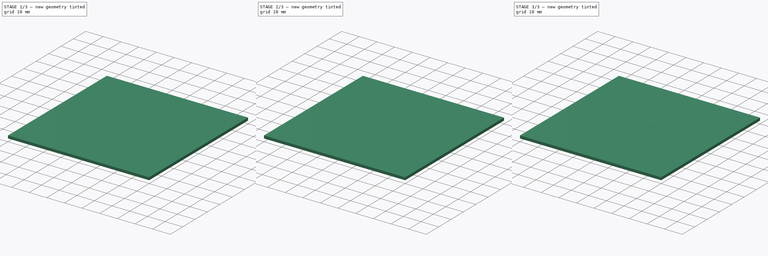
[diagram: build sequence overview — one tinted view per stage of 3, left to right]
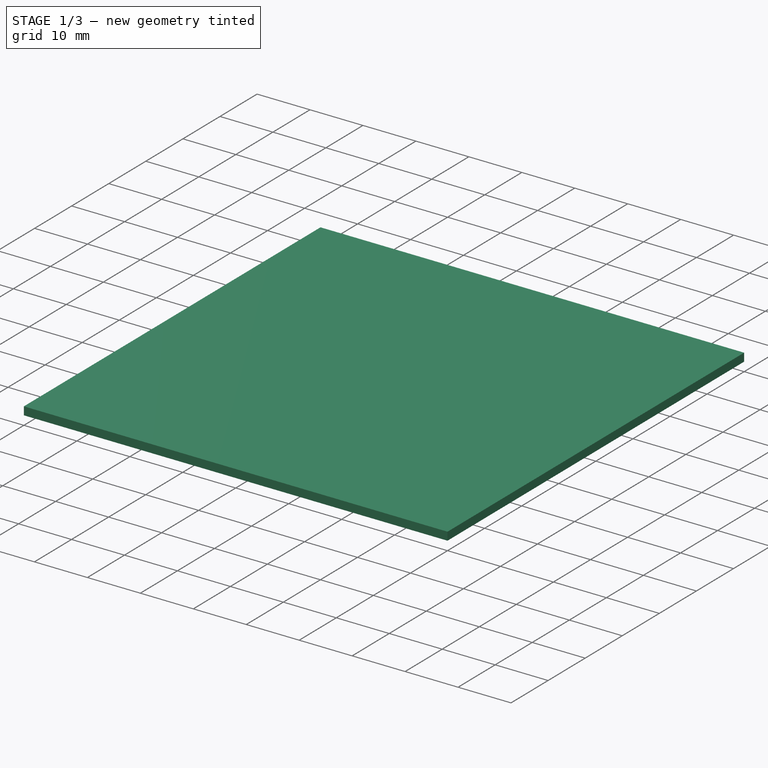
[diagram: stage 1 of 3 — iso view after this stage's code; geometry added in this stage tinted green]
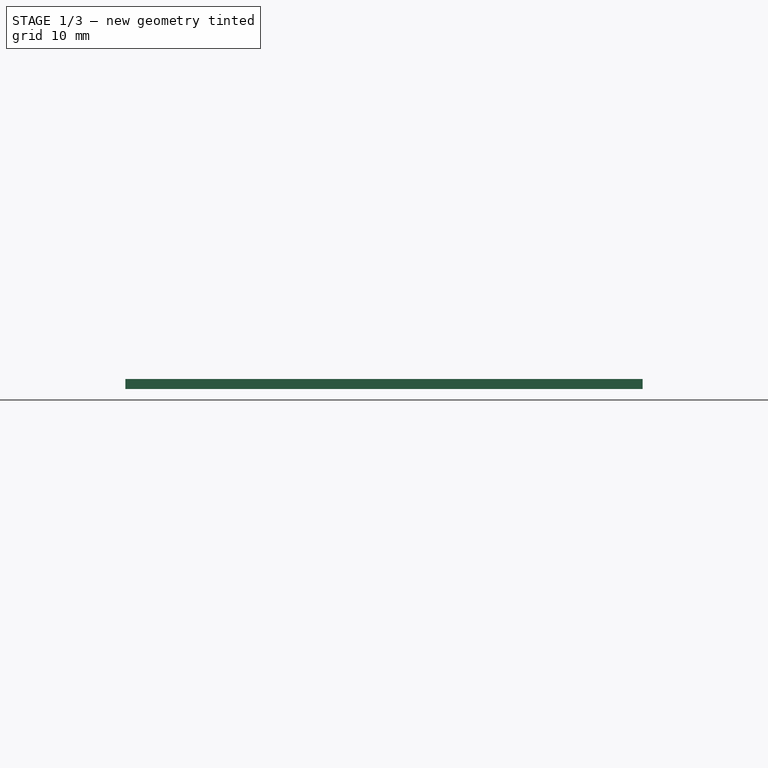
[diagram: stage 1 of 3 — front view after this stage's code; geometry added in this stage tinted green]
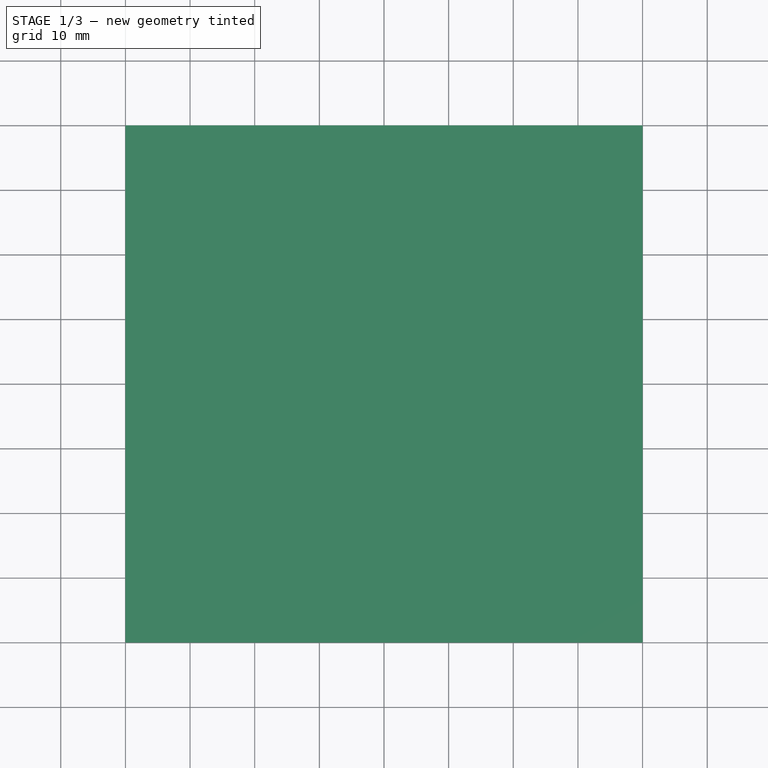
[diagram: stage 1 of 3 — top view after this stage's code; geometry added in this stage tinted green]
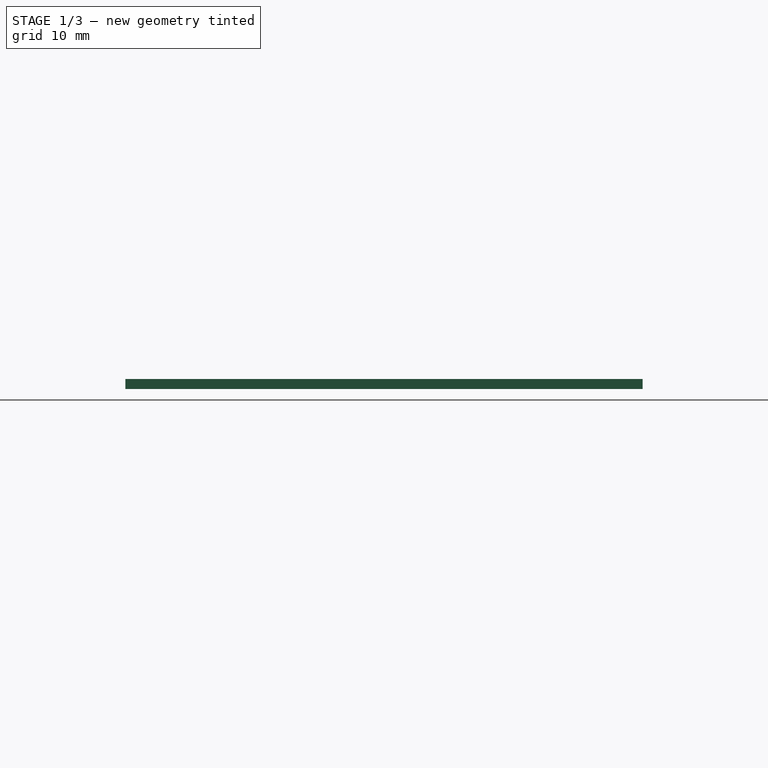
[diagram: stage 1 of 3 — right view after this stage's code; geometry added in this stage tinted green]
FCSTD DOCUMENT  (FreeCAD 0.17R13541 (Git))
Label: Circular Polarized Patch Antenna
License: All rights reserved
LicenseURL: http://en.wikipedia.org/wiki/All_rights_reserved
objects: Sketcher::SketchObject×5, Part::Extrusion×4, App::Part×1, Part::Cut×1
note: 10 computed .brp shape members not serialized (recipe doc carries the construction recipe); baked Part::Feature solids carry a one-line shape summary decoded from their .brp

FEATURE [Part::Extrusion] Extrude002  label="substrateSolid"
  Base = -> Sketch001
  Dir = (0,0,1)
  DirMode = 2
  FaceMakerClass = Part::FaceMakerBullseye
  LengthFwd = -1.5
  LengthRev = 0
  Solid = true
  Symmetric = false
FEATURE [Sketcher::SketchObject] Sketch004  label="substrate001"
  MapMode = 2
  Support = -> [Sketch]
  sketch-geometry (6):
    g0: LineSegment StartX=40 StartY=40 StartZ=0 EndX=-40 EndY=40 EndZ=0
    g1: LineSegment StartX=-40 StartY=40 StartZ=0 EndX=-40 EndY=-40 EndZ=0
    g2: LineSegment StartX=-40 StartY=-40 StartZ=0 EndX=40 EndY=-40 EndZ=0
    g3: LineSegment StartX=40 StartY=-40 StartZ=0 EndX=40 EndY=40 EndZ=0
    g4: GeomPoint X=0 Y=40 Z=0
    g5: GeomPoint X=40 Y=0 Z=0
  constraints (16):
    c: Coincident(g0,g1)
    c: Coincident(g1,g2)
    c: Coincident(g2,g3)
    c: Coincident(g3,g0)
    c: Horizontal(g0)
    c: Horizontal(g2)
    c: Vertical(g1)
    c: Vertical(g3)
    c: PointOnObject(g4,g0)
    c: Symmetric(g0,g0,g4)
    c: PointOnObject(g5,g3)
    c: Symmetric(g0,g2,g5)
    c: PointOnObject(g4,g-2)
    c: PointOnObject(g5,g-1)
    c: Distance(g3) = 80
    c: Distance(g0) = 80
FEATURE [Part::Extrusion] Extrude003  label="gndSolid"
  Base = -> Sketch004
  Dir = (0,0,1)
  DirMode = 2
  FaceMakerClass = Part::FaceMakerBullseye
  LengthFwd = -0.035
  LengthRev = 0
  Placement = pos=(0,0,-1.5) rot=(0,0,1;0rad)
  Solid = true
  Symmetric = false
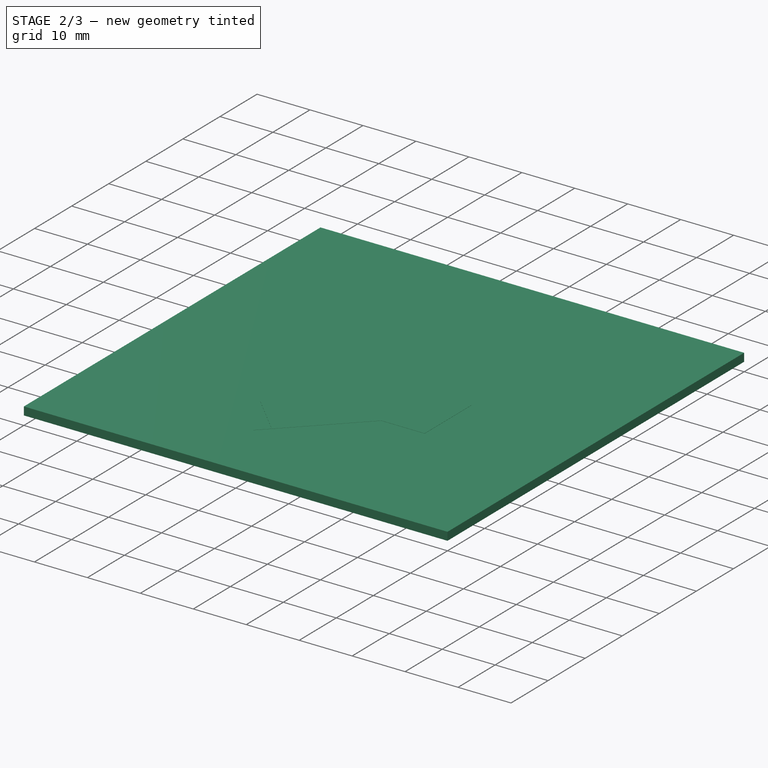
[diagram: stage 2 of 3 — iso view after this stage's code; geometry added in this stage tinted green]
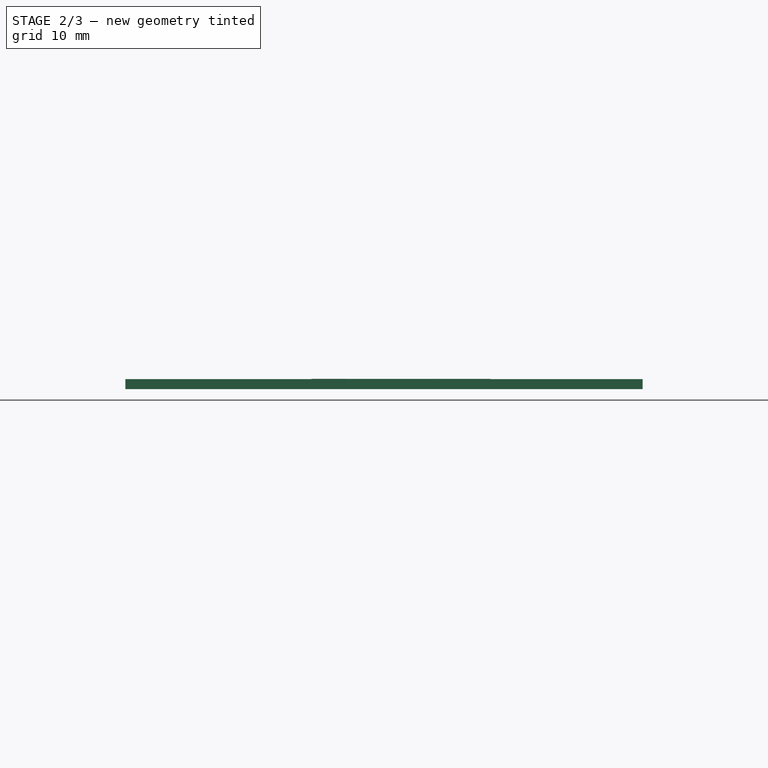
[diagram: stage 2 of 3 — front view after this stage's code; geometry added in this stage tinted green]
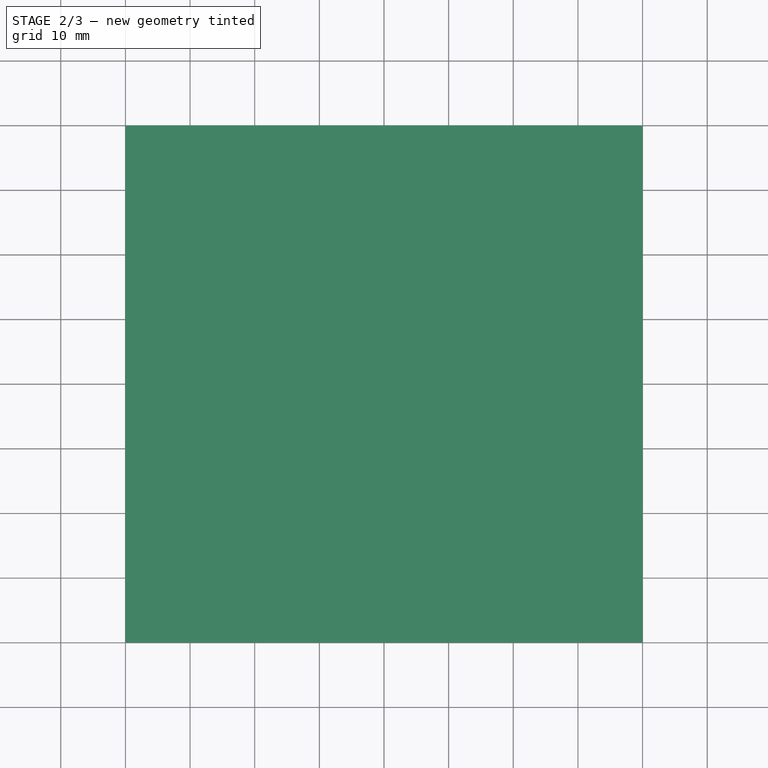
[diagram: stage 2 of 3 — top view after this stage's code; geometry added in this stage tinted green]
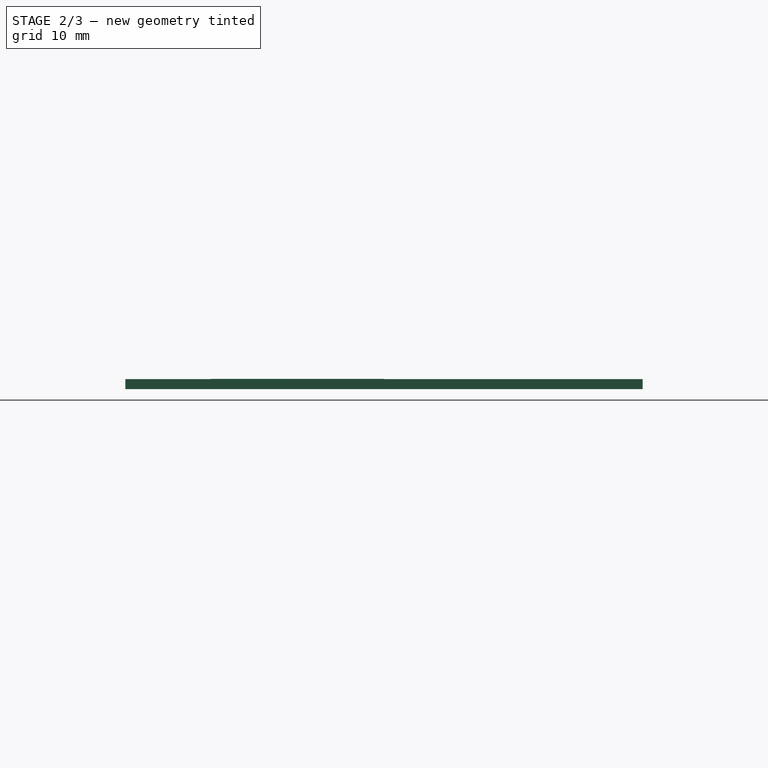
[diagram: stage 2 of 3 — right view after this stage's code; geometry added in this stage tinted green]
FEATURE [Part::Extrusion] Extrude001
  Base = -> Sketch002
  Dir = (0,0,1)
  DirMode = 2
  FaceMakerClass = Part::FaceMakerBullseye
  LengthFwd = 0.035
  LengthRev = 0
  Solid = true
  Symmetric = false
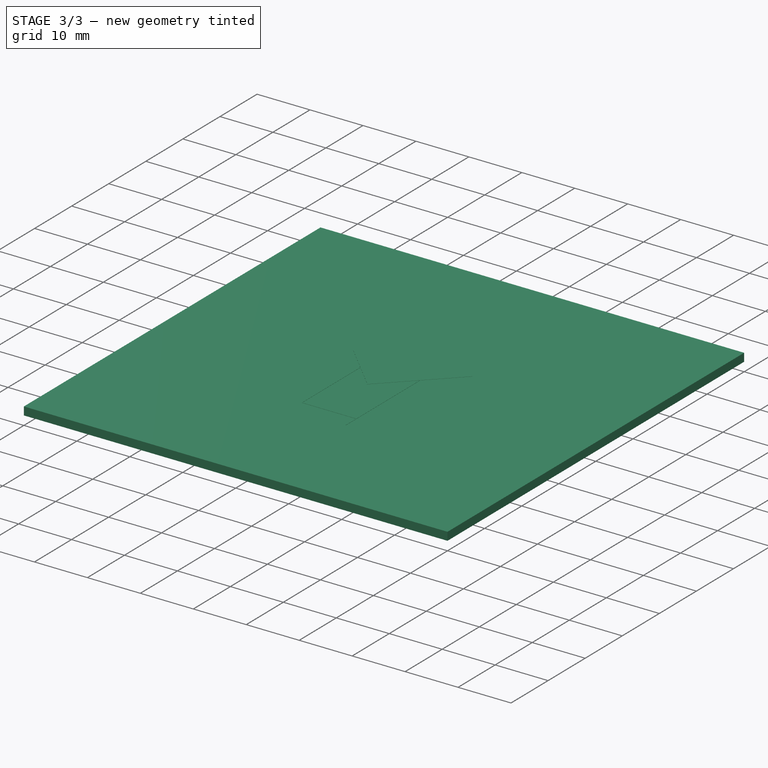
[diagram: stage 3 of 3 — iso view after this stage's code; geometry added in this stage tinted green]
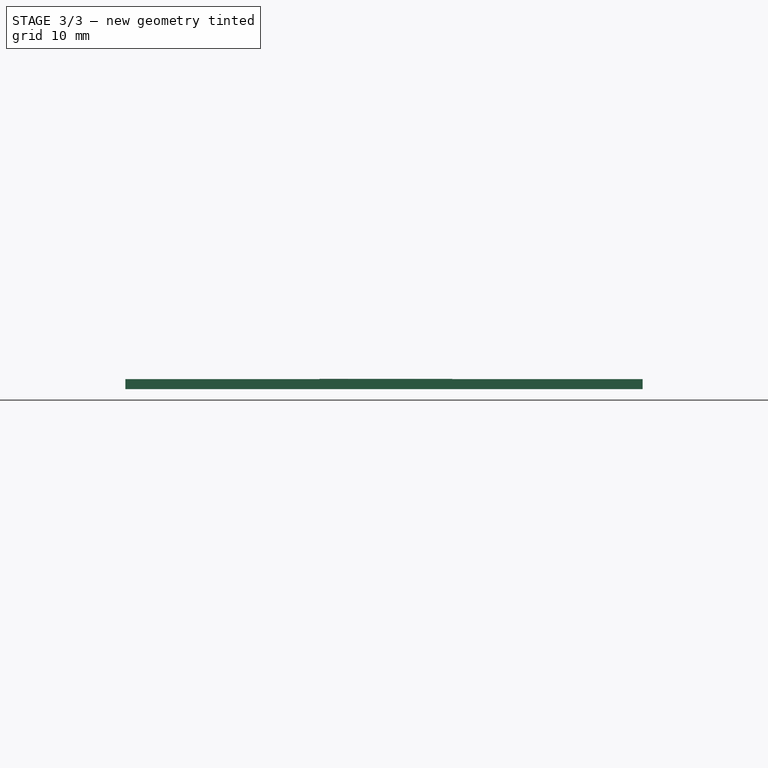
[diagram: stage 3 of 3 — front view after this stage's code; geometry added in this stage tinted green]
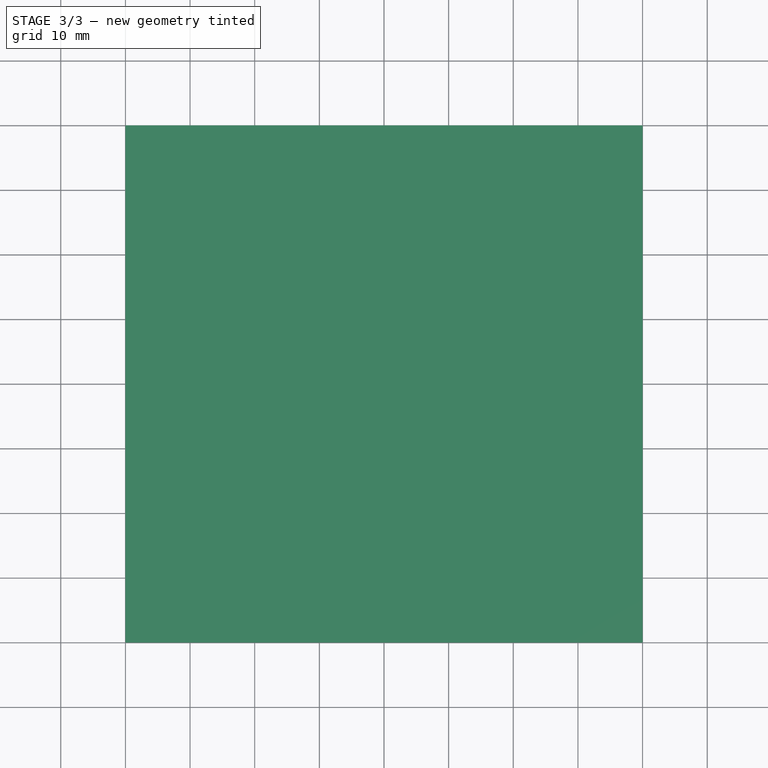
[diagram: stage 3 of 3 — top view after this stage's code; geometry added in this stage tinted green]
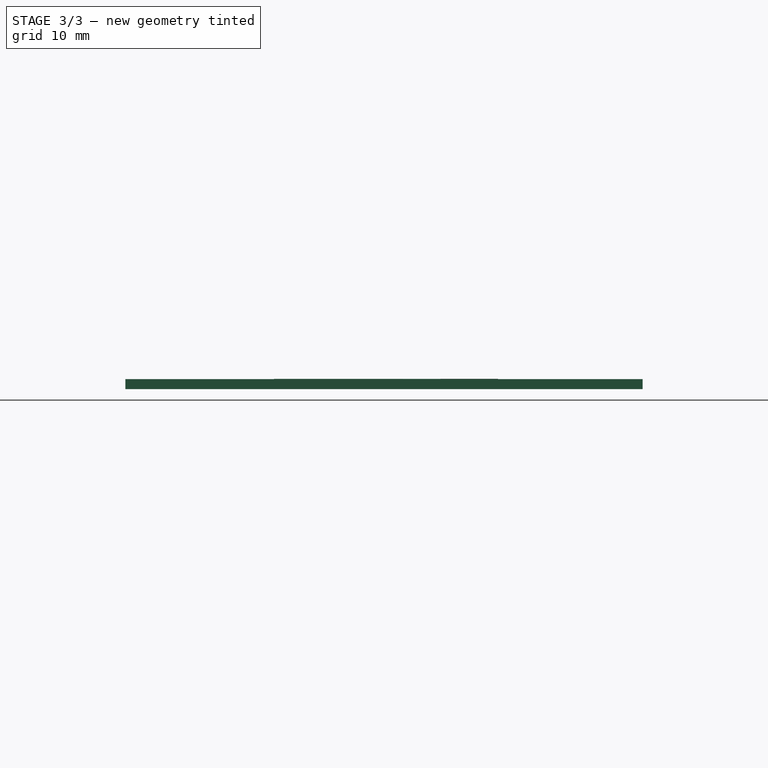
[diagram: stage 3 of 3 — right view after this stage's code; geometry added in this stage tinted green]
FEATURE [App::Part] Part
  License = CC BY 3.0
  LicenseURL = http://creativecommons.org/licenses/by/3.0/
  Origin = -> Origin
FEATURE [Sketcher::SketchObject] Sketch  label="antenna"
  sketch-geometry (25):
    g0: LineSegment StartX=0 StartY=0 StartZ=0 EndX=16.485 EndY=0 EndZ=0
    g1: LineSegment StartX=16.485 StartY=0 StartZ=0 EndX=16.485 EndY=-12.576 EndZ=0
    g2: LineSegment StartX=16.485 StartY=-12.576 StartZ=0 EndX=0 EndY=-12.576 EndZ=0
    g3: LineSegment StartX=0 StartY=-12.576 StartZ=0 EndX=0 EndY=0 EndZ=0
    g4: GeomPoint X=8.2425 Y=-12.576 Z=0
    g5: GeomPoint X=0 Y=-6.288 Z=0
    g6: GeomPoint X=0 Y=-6.33771 Z=0
    g7: GeomPoint X=0 Y=-6.23871 Z=0
    g8: LineSegment StartX=0 StartY=-6.33771 StartZ=0 EndX=-11.1392 EndY=-17.4769 EndZ=0
    g9: LineSegment StartX=0 StartY=-6.23871 StartZ=0 EndX=-11.1887 EndY=-17.4274 EndZ=0
    g10: GeomPoint X=-0.0494975 Y=-6.28821 Z=0
    g11: LineSegment StartX=-0.0494975 StartY=-6.28821 StartZ=0 EndX=0 EndY=-6.33771 EndZ=0
    g12: GeomPoint X=8.19206 Y=-12.576 Z=0
    g13: GeomPoint X=8.29105 Y=-12.576 Z=0
    g14: LineSegment StartX=8.19206 StartY=-12.576 StartZ=0 EndX=-3.92399 EndY=-24.6921 EndZ=0
    g15: LineSegment StartX=8.29105 StartY=-12.576 StartZ=0 EndX=-3.8745 EndY=-24.7416 EndZ=0
    g16: LineSegment StartX=8.19206 StartY=-12.576 StartZ=0 EndX=8.24156 EndY=-12.6255 EndZ=0
    g17: LineSegment StartX=-3.92399 StartY=-24.6921 StartZ=0 EndX=-3.8745 EndY=-24.7416 EndZ=0
    g18: LineSegment StartX=-11.1887 StartY=-17.4274 StartZ=0 EndX=-11.1392 EndY=-17.4769 EndZ=0
    g19: LineSegment StartX=-11.1392 StartY=-17.4769 StartZ=0 EndX=-3.92399 EndY=-24.6921 EndZ=0
    g20: GeomPoint X=-3.88157 Y=-24.6496 Z=0
    g21: LineSegment StartX=-3.88157 StartY=-24.6496 StartZ=0 EndX=-11.0967 EndY=-17.4345 EndZ=0
    g22: LineSegment StartX=-3.92399 StartY=-24.6921 StartZ=0 EndX=-5.91074 EndY=-26.6788 EndZ=0
    g23: LineSegment StartX=-3.8745 StartY=-24.7416 StartZ=0 EndX=-5.86124 EndY=-26.7283 EndZ=0
    g24: LineSegment StartX=-5.91074 StartY=-26.6788 StartZ=0 EndX=-5.86124 EndY=-26.7283 EndZ=0
  constraints (56):
    c: Coincident(g0,g1)
    c: Coincident(g1,g2)
    c: Coincident(g2,g3)
    c: Coincident(g3,g0)
    c: Horizontal(g0)
    c: Horizontal(g2)
    c: Vertical(g1)
    c: Vertical(g3)
    c: Coincident(g0,g-1)
    c: Distance(g0) = 16.485
    c: Distance(g1) = 12.576
    c: Symmetric(g2,g1,g4)
    c: PointOnObject(g5,g3)
    c: Symmetric(g2,g-1,g5)
    c: PointOnObject(g6,g3)
    c: PointOnObject(g7,g3)
    c: Coincident(g8,g6)
    c: Coincident(g9,g7)
    c: Angle(g9,g3) = 0.785398
    c: Angle(g3,g8) = 2.35619
    c: PointOnObject(g10,g9)
    c: Coincident(g11,g10)
    c: Coincident(g11,g6)
    c: Perpendicular(g11,g9)
    c: Distance(g11) = 0.07
    c: PointOnObject(g12,g2)
    c: PointOnObject(g13,g2)
    c: Coincident(g14,g12)
    c: Coincident(g15,g13)
    c: Angle(g14,g2) = 2.35619
    c: Angle(g15,g2) = 2.35619
    c: Coincident(g16,g12)
    c: PointOnObject(g16,g15)
    c: Perpendicular(g15,g16)
    c: Distance(g16) = 0.07
    c: Coincident(g17,g14)
    c: Coincident(g17,g15)
    c: Perpendicular(g17,g15)
    c: Coincident(g18,g9)
    c: Coincident(g18,g8)
    c: Perpendicular(g8,g18)
    c: Coincident(g19,g8)
    c: Coincident(g19,g14)
    c: Perpendicular(g19,g8)
    c: PointOnObject(g20,g14)
    c: Distance(g20,g14) = 0.06
    c: Coincident(g21,g20)
    c: PointOnObject(g21,g8)
    c: Perpendicular(g21,g8)
    c: Coincident(g22,g14)
    c: Parallel(g14,g22)
    c: Coincident(g23,g15)
    c: Parallel(g23,g15)
    c: Coincident(g24,g22)
    c: Coincident(g24,g23)
    c: Perpendicular(g24,g22)
FEATURE [Sketcher::SketchObject] Sketch001  label="substrate"
  MapMode = 2
  Support = -> [Sketch]
  sketch-geometry (6):
    g0: LineSegment StartX=40 StartY=40 StartZ=0 EndX=-40 EndY=40 EndZ=0
    g1: LineSegment StartX=-40 StartY=40 StartZ=0 EndX=-40 EndY=-40 EndZ=0
    g2: LineSegment StartX=-40 StartY=-40 StartZ=0 EndX=40 EndY=-40 EndZ=0
    g3: LineSegment StartX=40 StartY=-40 StartZ=0 EndX=40 EndY=40 EndZ=0
    g4: GeomPoint X=0 Y=40 Z=0
    g5: GeomPoint X=40 Y=0 Z=0
  constraints (16):
    c: Coincident(g0,g1)
    c: Coincident(g1,g2)
    c: Coincident(g2,g3)
    c: Coincident(g3,g0)
    c: Horizontal(g0)
    c: Horizontal(g2)
    c: Vertical(g1)
    c: Vertical(g3)
    c: PointOnObject(g4,g0)
    c: Symmetric(g0,g0,g4)
    c: PointOnObject(g5,g3)
    c: Symmetric(g0,g2,g5)
    c: PointOnObject(g4,g-2)
    c: PointOnObject(g5,g-1)
    c: Distance(g3) = 80
    c: Distance(g0) = 80
FEATURE [Sketcher::SketchObject] Sketch002
  sketch-geometry (9):
    g0: LineSegment StartX=0 StartY=0 StartZ=0 EndX=0 EndY=-6.23995 EndZ=0
    g1: LineSegment StartX=0 StartY=-6.23995 StartZ=0 EndX=-11.1895 EndY=-17.4321 EndZ=0
    g2: LineSegment StartX=-11.1895 StartY=-17.4321 StartZ=0 EndX=-3.92562 EndY=-24.698 EndZ=0
    g3: LineSegment StartX=-3.92562 StartY=-24.698 StartZ=0 EndX=-5.91015 EndY=-26.6795 EndZ=0
    g4: LineSegment StartX=-5.91015 StartY=-26.6795 StartZ=0 EndX=-5.86035 EndY=-26.7288 EndZ=0
    g5: LineSegment StartX=-5.86035 StartY=-26.7288 StartZ=0 EndX=8.29028 EndY=-12.5797 EndZ=0
    g6: LineSegment StartX=8.29028 StartY=-12.5797 StartZ=0 EndX=16.4843 EndY=-12.5797 EndZ=0
    g7: LineSegment StartX=16.4843 StartY=-12.5797 StartZ=0 EndX=16.4843 EndY=0 EndZ=0
    g8: LineSegment StartX=16.4843 StartY=0 StartZ=0 EndX=0 EndY=0 EndZ=0
  constraints (14):
    c: Coincident(g-1,g0)
    c: PointOnObject(g0,g-2)
    c: Coincident(g0,g1)
    c: Coincident(g1,g2)
    c: Coincident(g2,g3)
    c: Coincident(g3,g4)
    c: Coincident(g4,g5)
    c: Coincident(g5,g6)
    c: Horizontal(g6)
    c: Coincident(g6,g7)
    c: PointOnObject(g7,g-1)
    c: Vertical(g7)
    c: Coincident(g7,g8)
    c: Coincident(g8,g0)
FEATURE [Sketcher::SketchObject] Sketch003
  MapMode = 2
  Support = -> [Sketch002]
  sketch-geometry (5):
    g0: LineSegment StartX=-11.0989 StartY=-17.4378 StartZ=0 EndX=-3.88281 EndY=-24.6535 EndZ=0
    g1: LineSegment StartX=-3.88281 StartY=-24.6535 StartZ=0 EndX=8.19241 EndY=-12.5761 EndZ=0
    g2: LineSegment StartX=8.19241 StartY=-12.5761 StartZ=0 EndX=0 EndY=-12.5761 EndZ=0
    g3: LineSegment StartX=0 StartY=-12.5761 StartZ=0 EndX=0 EndY=-6.34084 EndZ=0
    g4: LineSegment StartX=0 StartY=-6.34084 StartZ=0 EndX=-11.0989 EndY=-17.4378 EndZ=0
  constraints (8):
    c: Coincident(g0,g1)
    c: Coincident(g1,g2)
    c: Horizontal(g2)
    c: Coincident(g2,g3)
    c: PointOnObject(g3,g-2)
    c: Vertical(g3)
    c: Coincident(g3,g4)
    c: Coincident(g4,g0)
FEATURE [Part::Extrusion] Extrude
  Base = -> Sketch003
  Dir = (0,0,1)
  DirMode = 2
  FaceMakerClass = Part::FaceMakerBullseye
  LengthFwd = 0.035
  LengthRev = 0
  Solid = true
  Symmetric = false
FEATURE [Part::Cut] Cut  label="antennaSolid"
  Base = -> Extrude001
  Placement = pos=(-10,6,0) rot=(0,0,1;0.785398rad)
  Tool = -> Extrude
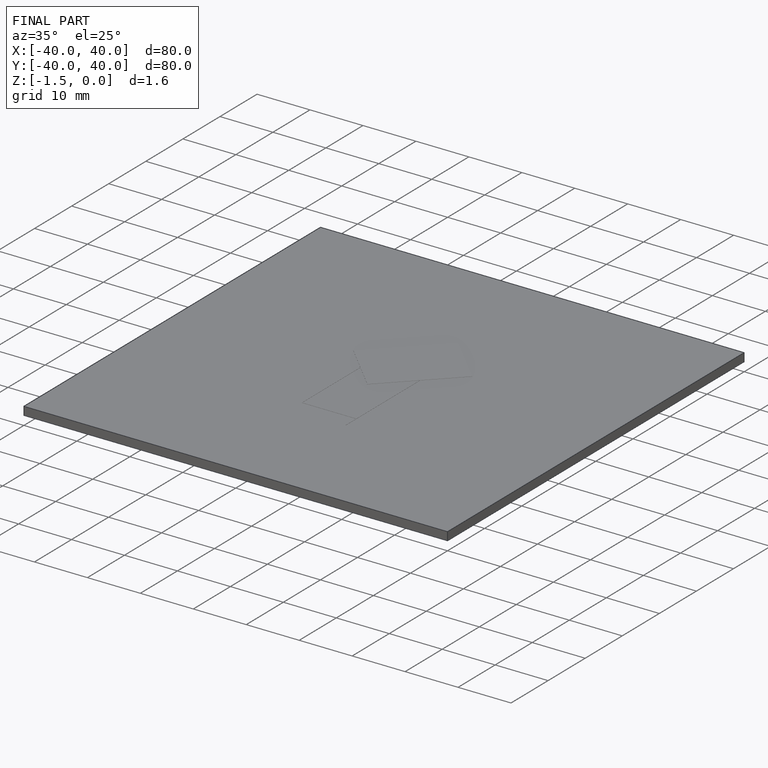
[diagram: finished part — iso view with bounding-box wireframe]
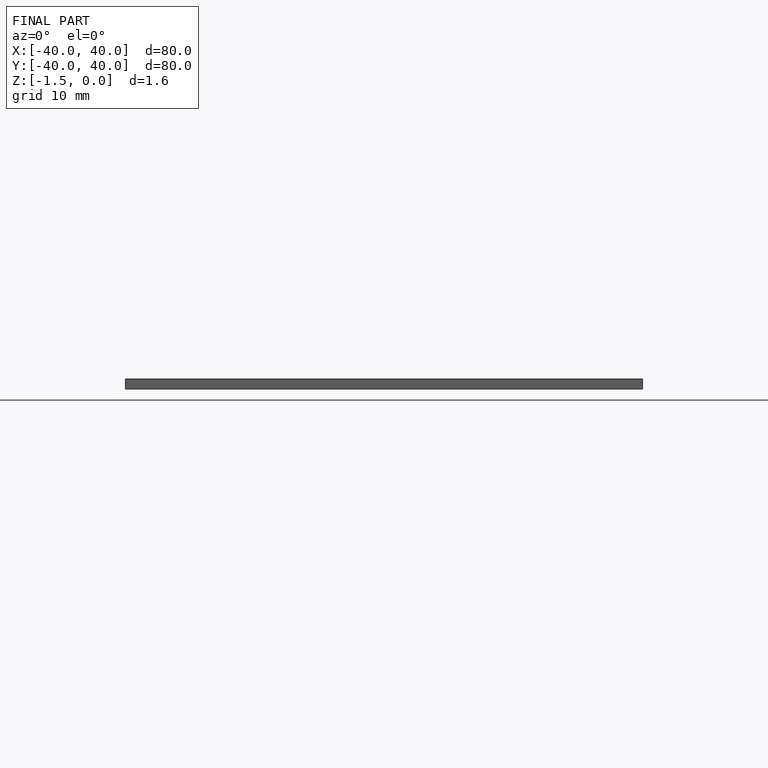
[diagram: finished part — front view with bounding-box wireframe]
